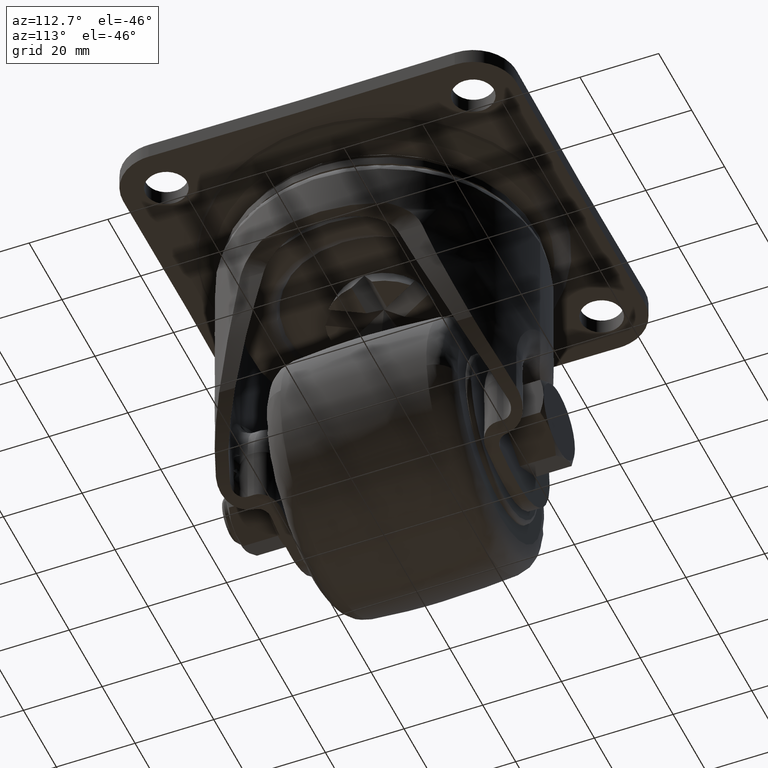
[diagram: clean part render]
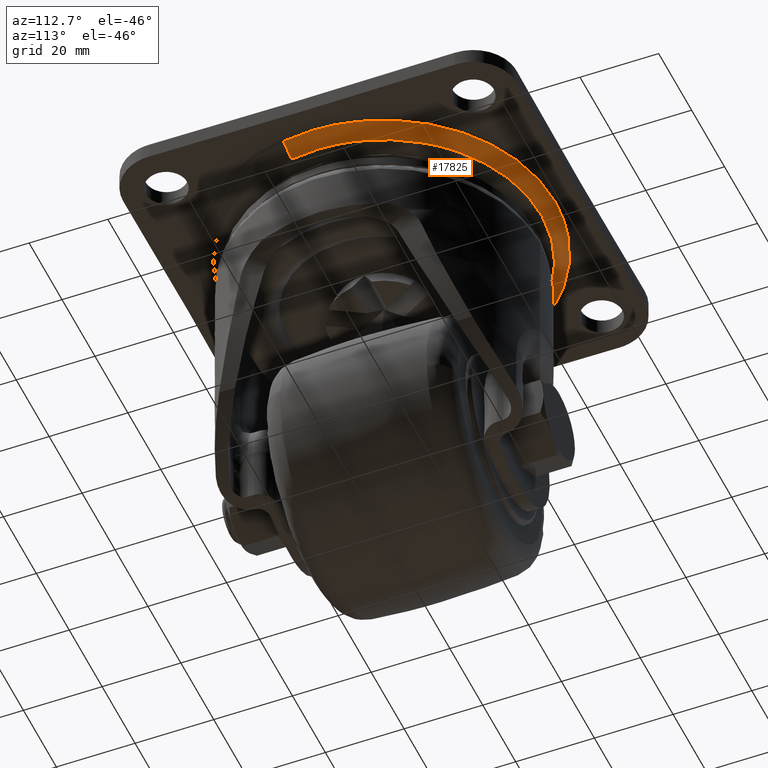
[diagram: same view with one face highlighted and labeled with its STEP entity id]
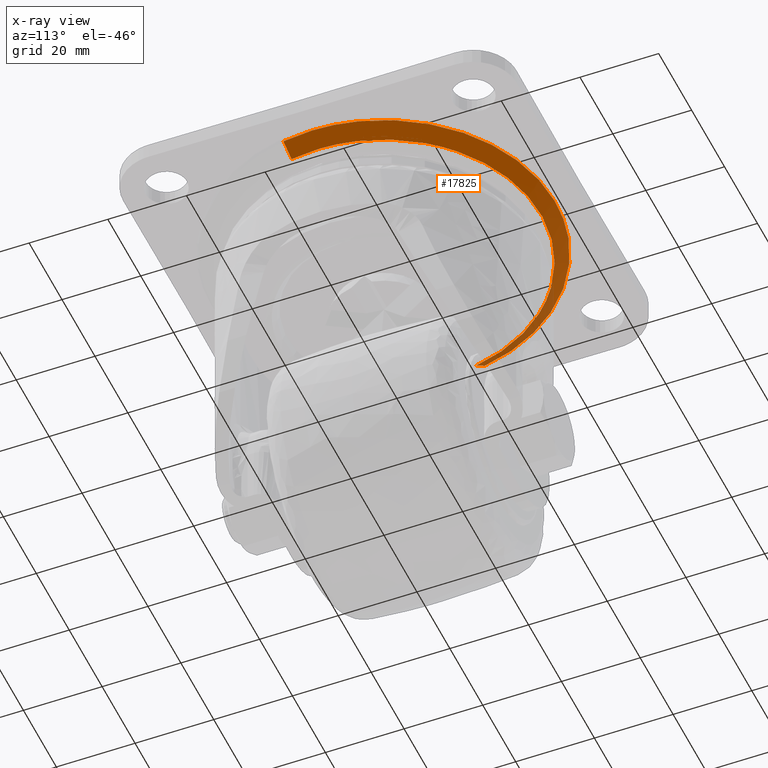
[diagram: x-ray of the same camera — body ghosted, the highlighted face saturated]
A machine part, auxiliary view. The second image highlights one B-rep face of the part: STEP entity #17825.
The next image is the same camera in x-ray: the body ghosted, the highlighted face saturated — about 9% of this face is hidden behind the body in this view.
In plain terms, the highlighted face is a freeform B-spline surface patch.
Its self-contained STEP definition (entity closure, byte-faithful):
#17500=CARTESIAN_POINT('',(42.877352845647522,-7.622178859036008,-4.504993986767767));
#17501=VERTEX_POINT('',#17500);
#17519=CARTESIAN_POINT('',(43.549569430830253,0.0,-4.504993986751691));
#17520=VERTEX_POINT('',#17519);
#17521=CARTESIAN_POINT('',(43.549569430830253,0.0,-4.504993986751691));
#17522=CARTESIAN_POINT('',(43.549569430822267,-3.840731553228957,-4.504993986759729));
#17523=CARTESIAN_POINT('',(42.877352845647522,-7.622178859036008,-4.504993986767767));
#17531=(BOUNDED_CURVE()B_SPLINE_CURVE(2,(#17521,#17522,#17523),.UNSPECIFIED.,.F.,.U.)B_SPLINE_CURVE_WITH_KNOTS((3,3),(0.500000000000000,0.530081746790473),.UNSPECIFIED.)CURVE()GEOMETRIC_REPRESENTATION_ITEM()RATIONAL_B_SPLINE_CURVE((1.0,0.964757041420029,0.937995440889256))REPRESENTATION_ITEM(''));
#17532=EDGE_CURVE('',#17520,#17501,#17531,.T.);
#17534=CARTESIAN_POINT('',(0.380036863714353,43.547911196683152,-4.504993986738734));
#17535=VERTEX_POINT('',#17534);
#17536=CARTESIAN_POINT('',(0.380036863714353,43.547911196683145,-4.504993986738734));
#17537=CARTESIAN_POINT('',(43.549569430831028,43.171176393246874,-4.504993986741577));
#17538=CARTESIAN_POINT('',(43.549569430830253,0.0,-4.504993986751691));
#17546=(BOUNDED_CURVE()B_SPLINE_CURVE(2,(#17536,#17537,#17538),.UNSPECIFIED.,.F.,.U.)B_SPLINE_CURVE_WITH_KNOTS((3,3),(0.251539894335507,0.500000000000000),.UNSPECIFIED.)CURVE()GEOMETRIC_REPRESENTATION_ITEM()RATIONAL_B_SPLINE_CURVE((0.996414028099202,0.708910879620785,1.0))REPRESENTATION_ITEM(''));
#17547=EDGE_CURVE('',#17535,#17520,#17546,.T.);
#17601=CARTESIAN_POINT('',(-42.877352845647508,7.622178859036005,-4.504993986767768));
#17602=VERTEX_POINT('',#17601);
#17603=CARTESIAN_POINT('',(-42.877352845647508,7.622178859036005,-4.504993986767768));
#17604=CARTESIAN_POINT('',(-36.490648007258358,43.549569430835504,-4.504993986756452));
#17605=CARTESIAN_POINT('',(8.824433E-012,43.549569430844763,-4.504993986738915));
#17606=CARTESIAN_POINT('',(0.190022049590285,43.549569430844805,-4.504993986738825));
#17607=CARTESIAN_POINT('',(0.380036863714353,43.547911196683145,-4.504993986738734));
#17615=(BOUNDED_CURVE()B_SPLINE_CURVE(2,(#17603,#17604,#17605,#17606,#17607),.UNSPECIFIED.,.F.,.U.)B_SPLINE_CURVE_WITH_KNOTS((3,2,3),(0.030081746790473,0.250000000000000,0.251539894335507),.UNSPECIFIED.)CURVE()GEOMETRIC_REPRESENTATION_ITEM()RATIONAL_B_SPLINE_CURVE((0.937995440889256,0.742349739766519,1.0,0.998195901565763,0.996414028099202))REPRESENTATION_ITEM(''));
#17616=EDGE_CURVE('',#17602,#17535,#17615,.T.);
#17663=CARTESIAN_POINT('',(39.393891314372027,-7.002934314413286,-7.431560323351834));
#17664=VERTEX_POINT('',#17663);
#17680=CARTESIAN_POINT('',(42.877352845647515,-7.622178859036008,-4.504993986767767));
#17681=CARTESIAN_POINT('',(41.266510795151014,-7.335824282400743,-6.128995942928340));
#17682=CARTESIAN_POINT('',(39.393891314372034,-7.002934314413286,-7.431560323351834));
#17690=(BOUNDED_CURVE()B_SPLINE_CURVE(2,(#17680,#17681,#17682),.UNSPECIFIED.,.F.,.U.)B_SPLINE_CURVE_WITH_KNOTS((3,3),(-1.217711652819115,-0.781978782446955),.UNSPECIFIED.)CURVE()GEOMETRIC_REPRESENTATION_ITEM()RATIONAL_B_SPLINE_CURVE((0.960469122853748,0.956532469939292,0.960474720390197))REPRESENTATION_ITEM(''));
#17691=EDGE_CURVE('',#17501,#17664,#17690,.T.);
#17696=CARTESIAN_POINT('',(-39.393891322616923,7.002934315878955,-7.431560335849518));
#17697=VERTEX_POINT('',#17696);
#17698=CARTESIAN_POINT('',(-42.877352845647508,7.622178859036005,-4.504993986767768));
#17699=CARTESIAN_POINT('',(-41.266510799281683,7.335824283135038,-6.128995949188258));
#17700=CARTESIAN_POINT('',(-39.393891322616923,7.002934315878955,-7.431560335849518));
#17708=(BOUNDED_CURVE()B_SPLINE_CURVE(2,(#17698,#17699,#17700),.UNSPECIFIED.,.F.,.U.)B_SPLINE_CURVE_WITH_KNOTS((3,3),(-1.217711652819115,-0.781978782432481),.UNSPECIFIED.)CURVE()GEOMETRIC_REPRESENTATION_ITEM()RATIONAL_B_SPLINE_CURVE((0.960469122853748,0.956532469939161,0.960474720390459))REPRESENTATION_ITEM(''));
#17709=EDGE_CURVE('',#17602,#17697,#17708,.T.);
#17744=CARTESIAN_POINT('',(-43.250745927877105,6.447364054661145,-4.342721917380755));
#17745=CARTESIAN_POINT('',(-43.144426740749601,7.045445703643487,-4.342721917380755));
#17746=CARTESIAN_POINT('',(-35.386327631868710,50.687396261860783,-4.342721917380754));
#17747=CARTESIAN_POINT('',(7.650534314996033,43.036861946864747,-4.342721917380755));
#17748=CARTESIAN_POINT('',(50.687396261860783,35.386327631868710,-4.342721917380754));
#17749=CARTESIAN_POINT('',(42.929297152939569,-8.255622926575331,-4.342721917380755));
#17750=CARTESIAN_POINT('',(42.822977965772701,-8.853704575779194,-4.342721917380755));
#17751=CARTESIAN_POINT('',(-41.485457174555975,6.184213465923568,-6.145929925020374));
#17752=CARTESIAN_POINT('',(-41.383477428547288,6.757884280228589,-6.145929925020375));
#17753=CARTESIAN_POINT('',(-33.942026849310160,48.618578981682461,-6.145929925020374));
#17754=CARTESIAN_POINT('',(7.338276066186156,41.280302915496314,-6.145929925020375));
#17755=CARTESIAN_POINT('',(48.618578981682461,33.942026849310160,-6.145929925020374));
#17756=CARTESIAN_POINT('',(41.177128402406673,-7.918667852361222,-6.145929925020375));
#17757=CARTESIAN_POINT('',(41.075148656360213,-8.492338666878720,-6.145929925020375));
#17758=CARTESIAN_POINT('',(-39.401900740555661,5.873618895350551,-7.560268374365932));
#17759=CARTESIAN_POINT('',(-39.305042802775816,6.418477793443244,-7.560268374365933));
#17760=CARTESIAN_POINT('',(-32.237329993076244,46.176770214262945,-7.560268374365934));
#17761=CARTESIAN_POINT('',(6.969720110593354,39.207050103669609,-7.560268374365932));
#17762=CARTESIAN_POINT('',(46.176770214262945,32.237329993076244,-7.560268374365934));
#17763=CARTESIAN_POINT('',(39.109057404526666,-7.520962427950038,-7.560268374365934));
#17764=CARTESIAN_POINT('',(39.012199466710953,-8.065821326244537,-7.560268374365933));
#17772=(BOUNDED_SURFACE()B_SPLINE_SURFACE(2,2,((#17744,#17751,#17758),(#17745,#17752,#17759),(#17746,#17753,#17760),(#17747,#17754,#17761),(#17748,#17755,#17762),(#17749,#17756,#17763),(#17750,#17757,#17764)),.UNSPECIFIED.,.F.,.F.,.U.)B_SPLINE_SURFACE_WITH_KNOTS((3,1,2,1,3),(3,3),(0.0,1.448474316793630,73.872190168309274,146.295906019824910,147.744380337164500),(0.0,5.061849854086278),.UNSPECIFIED.)GEOMETRIC_REPRESENTATION_ITEM()RATIONAL_B_SPLINE_SURFACE(((0.972139486570280,0.967320894405528,0.972145714670781),(0.966510769822695,0.961720077450917,0.966516961862307),(0.679446215649862,0.676078412720005,0.679450568584163),(0.960882053075109,0.956119260496306,0.960888209053834),(0.679446215649862,0.676078412720005,0.679450568584163),(0.966510769824816,0.961720077453028,0.966516961864429),(0.972139486574523,0.967320894409751,0.972145714675025)))REPRESENTATION_ITEM('')SURFACE());
#17773=CARTESIAN_POINT('',(40.011495378972448,0.0,-7.431560293621270));
#17774=VERTEX_POINT('',#17773);
#17775=CARTESIAN_POINT('',(40.011495378972448,0.0,-7.431560293621270));
#17776=CARTESIAN_POINT('',(40.011495377228293,-3.528701082486899,-7.431560308190329));
#17777=CARTESIAN_POINT('',(39.393891314372034,-7.002934314413286,-7.431560323351834));
#17785=(BOUNDED_CURVE()B_SPLINE_CURVE(2,(#17775,#17776,#17777),.UNSPECIFIED.,.F.,.U.)B_SPLINE_CURVE_WITH_KNOTS((3,3),(0.500000000000000,0.530081746859917),.UNSPECIFIED.)CURVE()GEOMETRIC_REPRESENTATION_ITEM()RATIONAL_B_SPLINE_CURVE((1.0,0.964757041338670,0.937995440765697))REPRESENTATION_ITEM(''));
#17786=EDGE_CURVE('',#17774,#17664,#17785,.T.);
#17787=ORIENTED_EDGE('',*,*,#17786,.F.);
#17788=CARTESIAN_POINT('',(-22.697278860254968,32.950770614101167,-7.431560388948540));
#17789=VERTEX_POINT('',#17788);
#17790=CARTESIAN_POINT('',(-22.697278860254965,32.950770614101174,-7.431560388948541));
#17791=CARTESIAN_POINT('',(-12.446873082129404,40.011495275904075,-7.431560376184802));
#17792=CARTESIAN_POINT('',(0.000000058970299,40.011495293362323,-7.431560362199769));
#17793=CARTESIAN_POINT('',(40.011495399285280,40.011495349483283,-7.431560317243736));
#17794=CARTESIAN_POINT('',(40.011495378972448,0.0,-7.431560293621270));
#17802=(BOUNDED_CURVE()B_SPLINE_CURVE(2,(#17790,#17791,#17792,#17793,#17794),.UNSPECIFIED.,.F.,.U.)B_SPLINE_CURVE_WITH_KNOTS((3,2,3),(0.152570046504760,0.250000000000000,0.500000000000000),.UNSPECIFIED.)CURVE()GEOMETRIC_REPRESENTATION_ITEM()RATIONAL_B_SPLINE_CURVE((0.860677560892650,0.885853709247737,1.0,0.707106781186548,1.0))REPRESENTATION_ITEM(''));
#17803=EDGE_CURVE('',#17789,#17774,#17802,.T.);
#17804=ORIENTED_EDGE('',*,*,#17803,.F.);
#17805=CARTESIAN_POINT('',(-39.393891322616923,7.002934315878955,-7.431560335849518));
#17806=CARTESIAN_POINT('',(-36.467372201226915,23.465601062055679,-7.431560361091488));
#17807=CARTESIAN_POINT('',(-22.697278860254965,32.950770614101174,-7.431560388948541));
#17815=(BOUNDED_CURVE()B_SPLINE_CURVE(2,(#17805,#17806,#17807),.UNSPECIFIED.,.F.,.U.)B_SPLINE_CURVE_WITH_KNOTS((3,3),(0.030081746873314,0.152570046504760),.UNSPECIFIED.)CURVE()GEOMETRIC_REPRESENTATION_ITEM()RATIONAL_B_SPLINE_CURVE((0.937995440741861,0.829026272016338,0.860677560892650))REPRESENTATION_ITEM(''));
#17816=EDGE_CURVE('',#17697,#17789,#17815,.T.);
#17817=ORIENTED_EDGE('',*,*,#17816,.F.);
#17818=ORIENTED_EDGE('',*,*,#17709,.F.);
#17819=ORIENTED_EDGE('',*,*,#17616,.T.);
#17820=ORIENTED_EDGE('',*,*,#17547,.T.);
#17821=ORIENTED_EDGE('',*,*,#17532,.T.);
#17822=ORIENTED_EDGE('',*,*,#17691,.T.);
#17823=EDGE_LOOP('',(#17787,#17804,#17817,#17818,#17819,#17820,#17821,#17822));
#17824=FACE_OUTER_BOUND('',#17823,.T.);
#17825=ADVANCED_FACE('',(#17824),#17772,.T.);